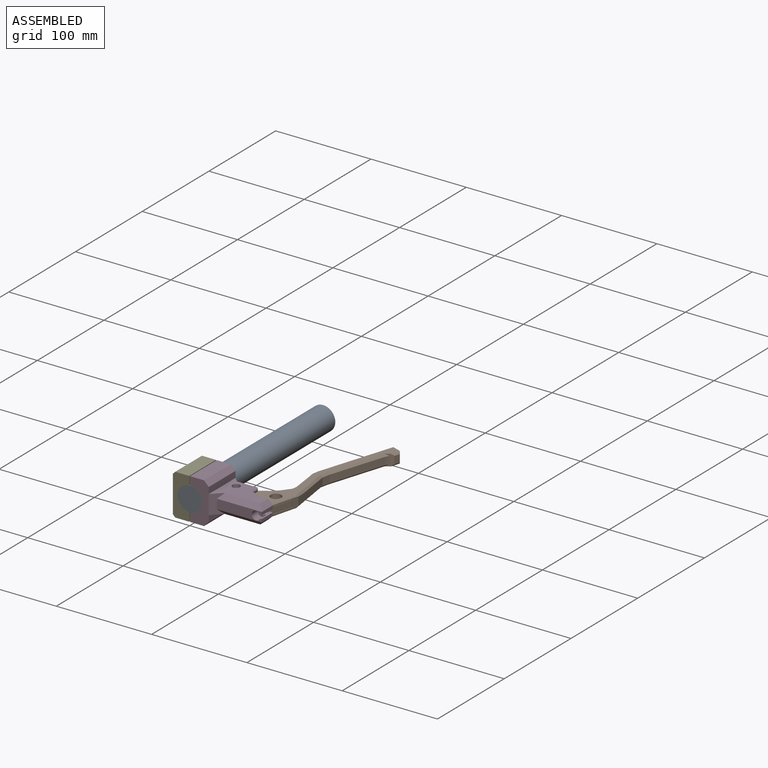
[diagram: assembled view]
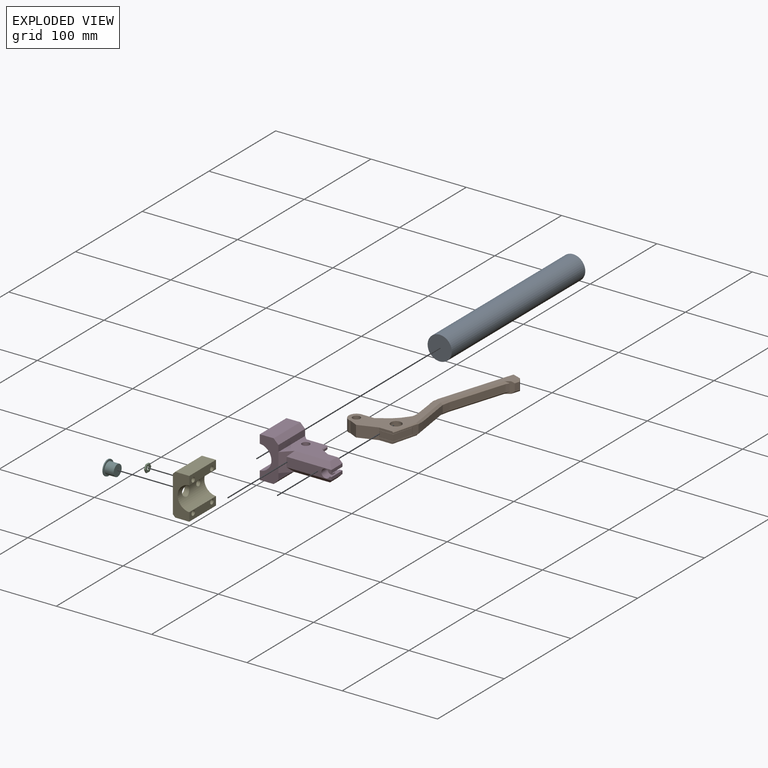
[diagram: exploded view]
GUIDED TOUR — MATED ASSEMBLY (Onshape document 7befc8989a784913a7638c34, AutoMate assembly 7befc8989a784913a7638c34_0e0c5ffce9ebd1dbfafa8be5_669b1a6eef38ef0215244f0b_default)

This assembly has 6 components, labeled P0..P5 below (a component is one placed occurrence of a part; the same part can appear more than once), held together by 9 mates. A mate is a constraint between two components; its type names the relative motion it leaves free:
  FASTENED — locks the two components together rigidly (no relative motion),
  PARALLEL — keeps the two listed directions parallel,
  PLANAR — leaves sliding in the plane through the listed point (normal = the listed direction) and rotation about that normal free,
  REVOLUTE — leaves rotation about the listed axis free (a hinge),
  SLIDER — leaves translation along the listed axis free.
Axis/direction vectors are unit vectors and 'through' points are millimeter coordinates, both in the assembly's world frame.

MATES
  1. PLANAR "Planar 1": P4 <-> P3, direction (0.000, -1.000, 0.000) through (-7.85, 0.00, 21.70) mm
  2. PARALLEL "Parallel 1": P4 <-> P3, direction (1.000, 0.000, 0.000) through (-0.50, 20.00, 17.38) mm
  3. PLANAR "Planar 2": P4 <-> P5, direction (-1.000, 0.000, 0.000) through (-17.70, 20.36, -0.01) mm
  4. REVOLUTE "Revolute 1": P1 <-> P3, axis (0.000, 0.000, -1.000) through (29.84, 27.00, -6.00) mm
  5. SLIDER "Slider 1": P0 <-> P3, axis (0.000, 1.000, 0.000) through (0.00, 100.00, 0.00) mm
  6. FASTENED "Fastened 2": P4 <-> P0, direction (0.000, -1.000, 0.000) through (0.00, 0.00, 0.00) mm
  7. SLIDER "Slider 3": P2 <-> P4, axis (1.000, 0.000, 0.000) through (-17.70, 31.00, 0.00) mm
  8. PARALLEL "Parallel 2": P3 <-> P1, direction (0.000, 1.000, 0.000) through (62.73, 21.66, 9.00) mm
  9. SLIDER "Slider 2": P4 <-> P5, axis (-1.000, 0.000, 0.000) through (-17.70, 12.00, 0.00) mm

ASSEMBLY ORDER
  1. P4 — the base component [order heuristic]
  2. P3 [order verified]
  3. P5 — core [order heuristic]
  4. P1 [order verified]
  5. P0 — core [order heuristic]
  6. P2 [order verified]
Order-tag legend:
  [order verified] — this step's position reverses a verified removal order: the component was checked to insert without passing through the ones already placed.
  [order heuristic] — the first 3 components form the assembly's core: parts whose collision-free extraction could not be verified, listed in mate-graph order.

Of the 6 components, 1 carries the full construction recipe — the FeatureScript program that regenerates the part's solid from scratch; the rest are supplied as boundary geometry only.
Each toured component is shown spotlighted twice — in the assembled view, then in the exploded view, where a leader line traces a displaced component back to its assembled socket (saturated green if recipe-attached, orange if geometry-only; every other component desaturated gray) — followed by its recipe or geometry summary and the mates that hold it.
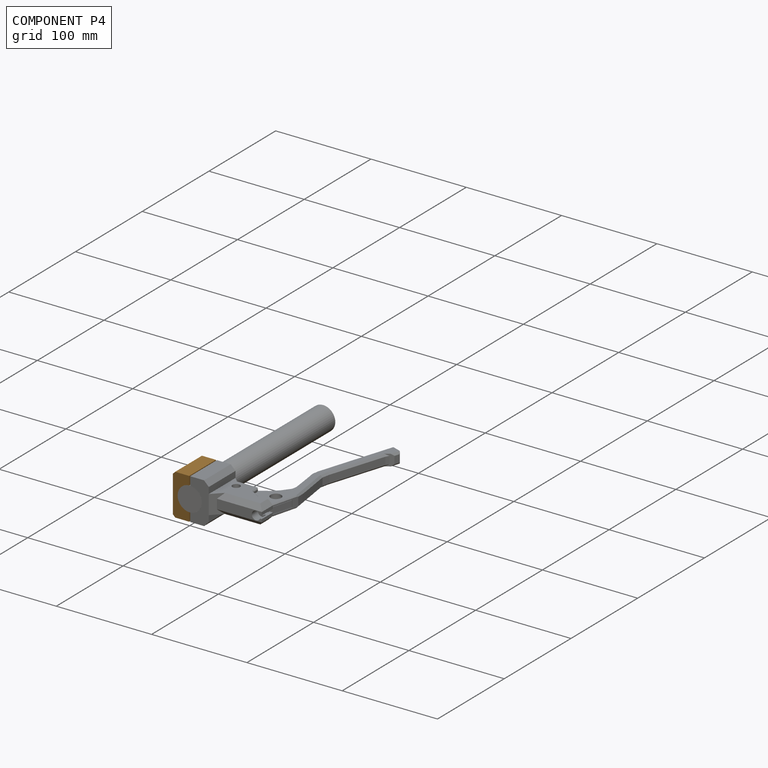
[diagram: component P4 — assembled]
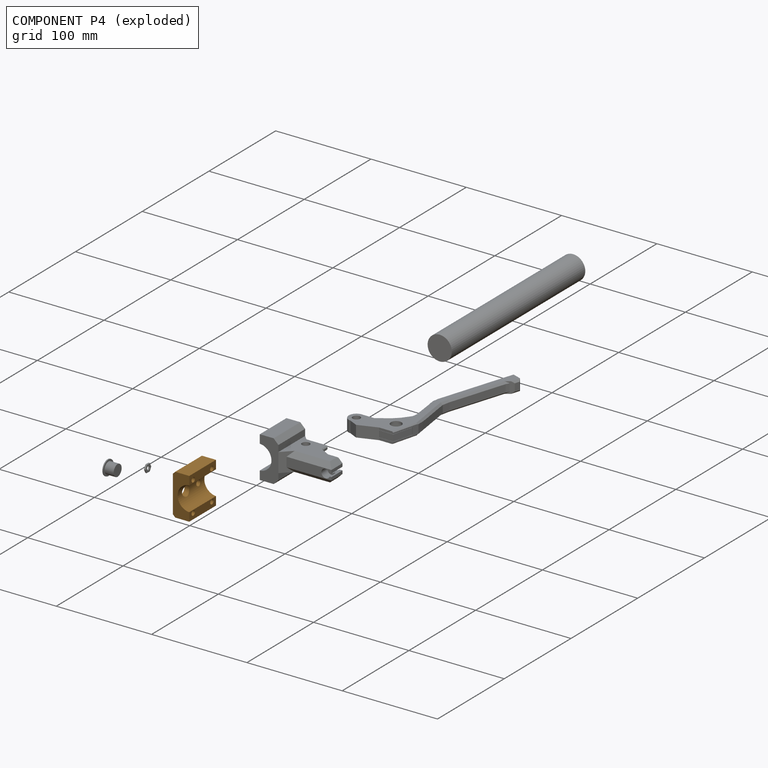
[diagram: component P4 — exploded]
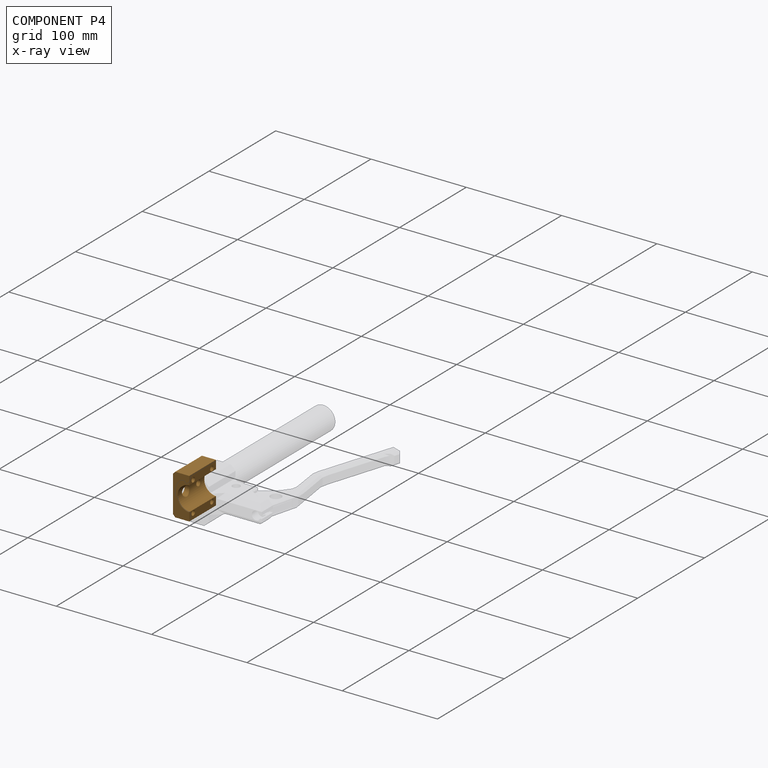
[diagram: component P4 — x-ray view]
COMPONENT P4 — geometry summary (no construction recipe available for this part):
  bounding box: 43.4 x 40.0 x 17.2 mm
  B-rep topology: 1 solid, 24 faces, 140 edges
  volume: 17131 mm^3 (57% of its bounding box)
  symmetry: mirror-symmetric across its z mid-plane
Held by: PLANAR mate "Planar 1" to P3; PARALLEL mate "Parallel 1" to P3; PLANAR mate "Planar 2" to P5; FASTENED mate "Fastened 2" to P0; SLIDER mate "Slider 3" to P2; SLIDER mate "Slider 2" to P5.
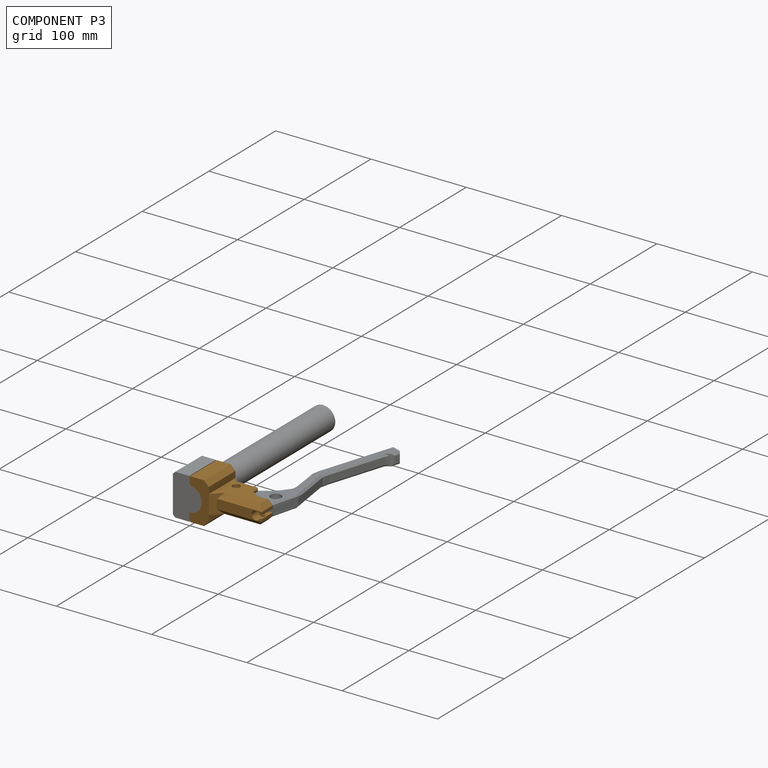
[diagram: component P3 — assembled]
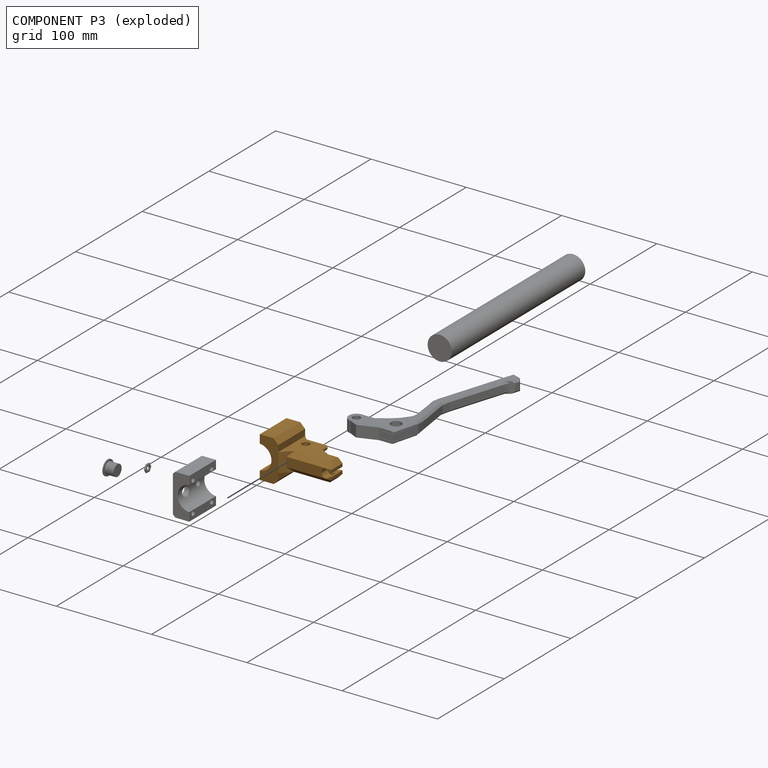
[diagram: component P3 — exploded]
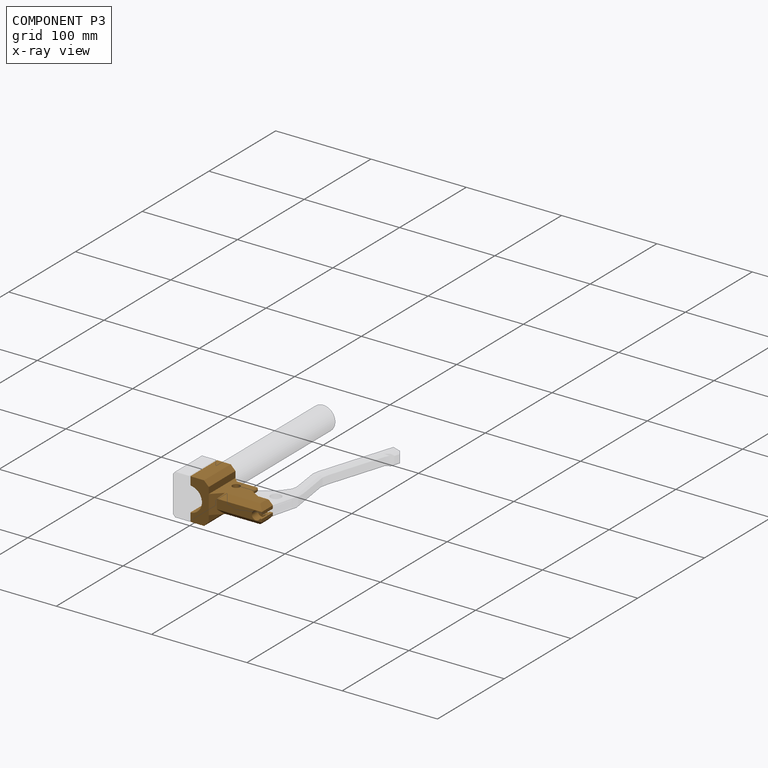
[diagram: component P3 — x-ray view]
COMPONENT P3 — geometry summary (no construction recipe available for this part):
  bounding box: 71.6 x 43.4 x 40.0 mm
  B-rep topology: 1 solid, 72 faces, 352 edges
  volume: 38977 mm^3 (31% of its bounding box)
  symmetry: mirror-symmetric across its z mid-plane
Held by: PLANAR mate "Planar 1" to P4; PARALLEL mate "Parallel 1" to P4; REVOLUTE mate "Revolute 1" to P1; SLIDER mate "Slider 1" to P0; PARALLEL mate "Parallel 2" to P1.
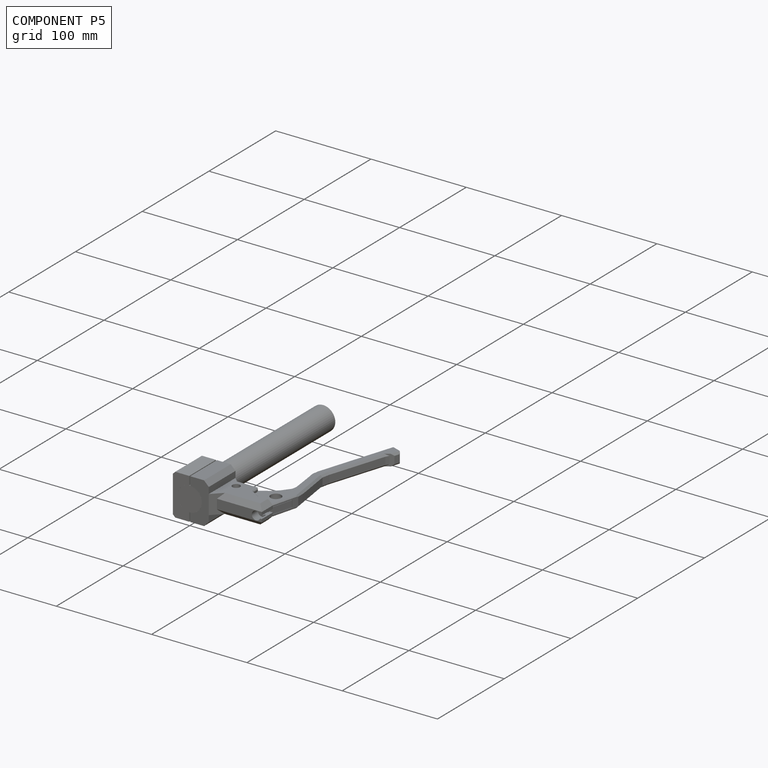
[diagram: component P5 — assembled]
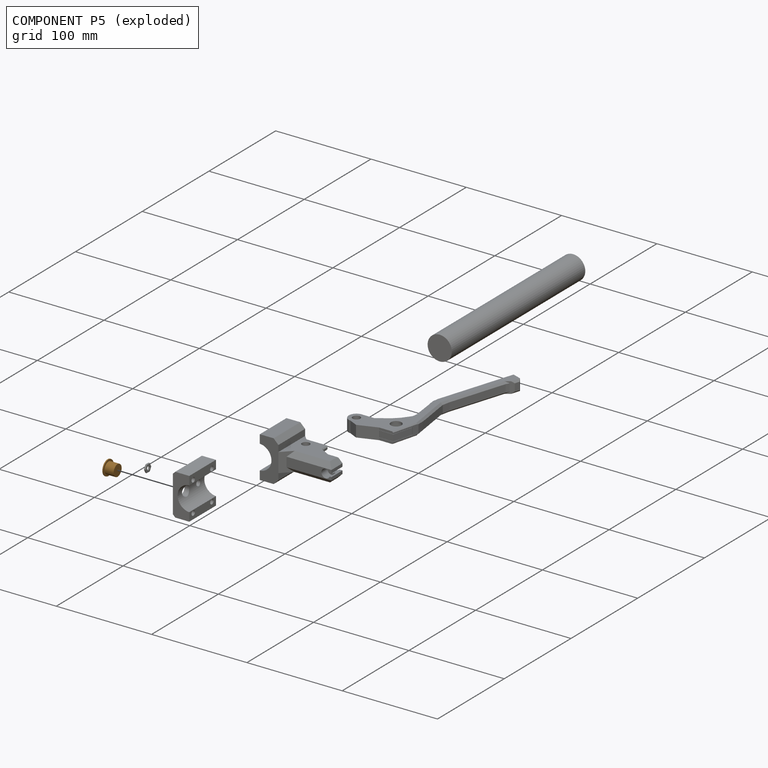
[diagram: component P5 — exploded]
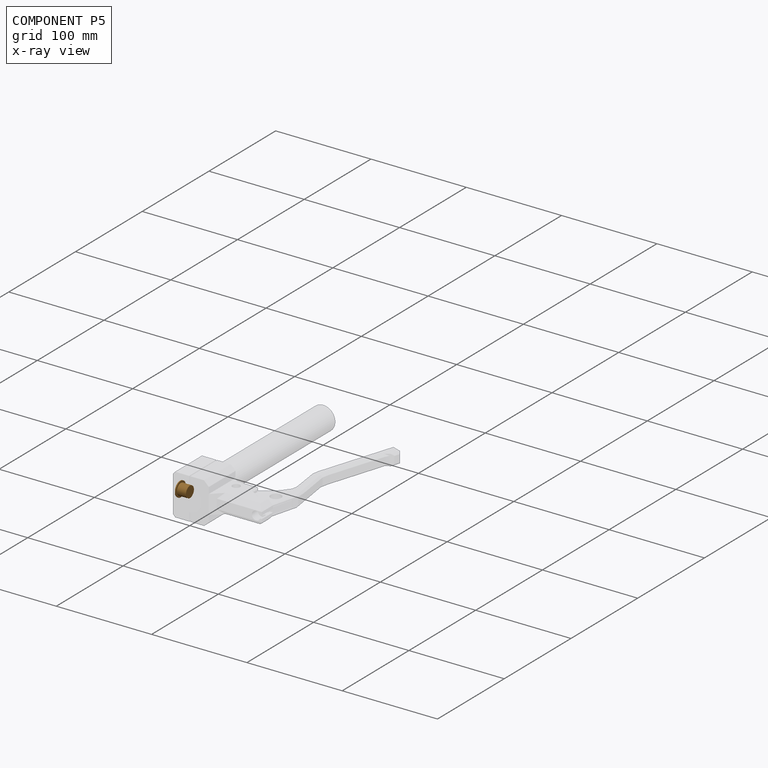
[diagram: component P5 — x-ray view]
COMPONENT P5 — geometry summary (no construction recipe available for this part):
  bounding box: 15.7 x 15.7 x 11.1 mm
  B-rep topology: 1 solid, 6 faces, 16 edges
  volume: 1331 mm^3 (49% of its bounding box)
  symmetry: revolution-symmetric about the z axis through its bounding-box center; mirror-symmetric across its x mid-plane, y mid-plane
Held by: PLANAR mate "Planar 2" to P4; SLIDER mate "Slider 2" to P4.
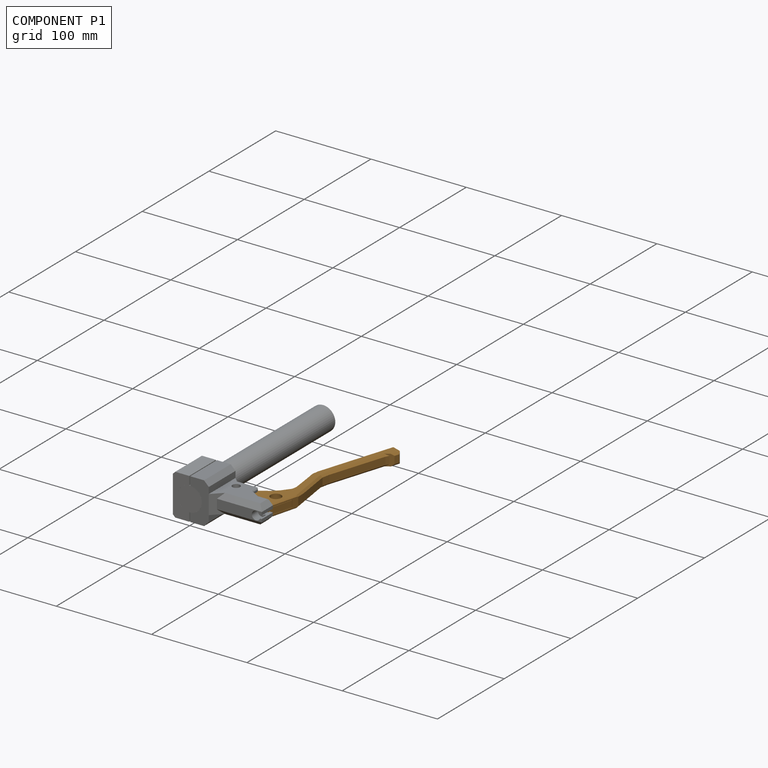
[diagram: component P1 — assembled]
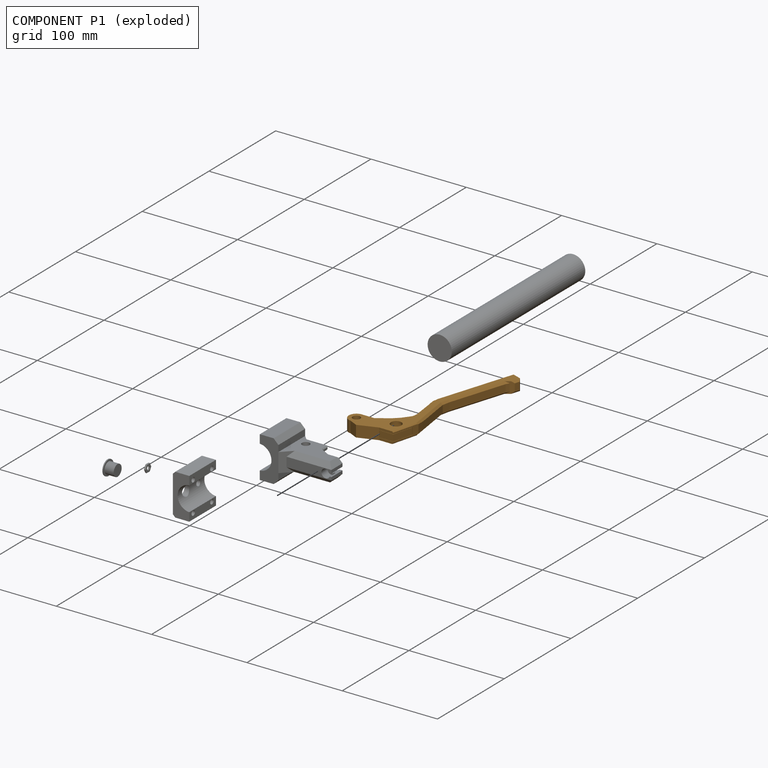
[diagram: component P1 — exploded]
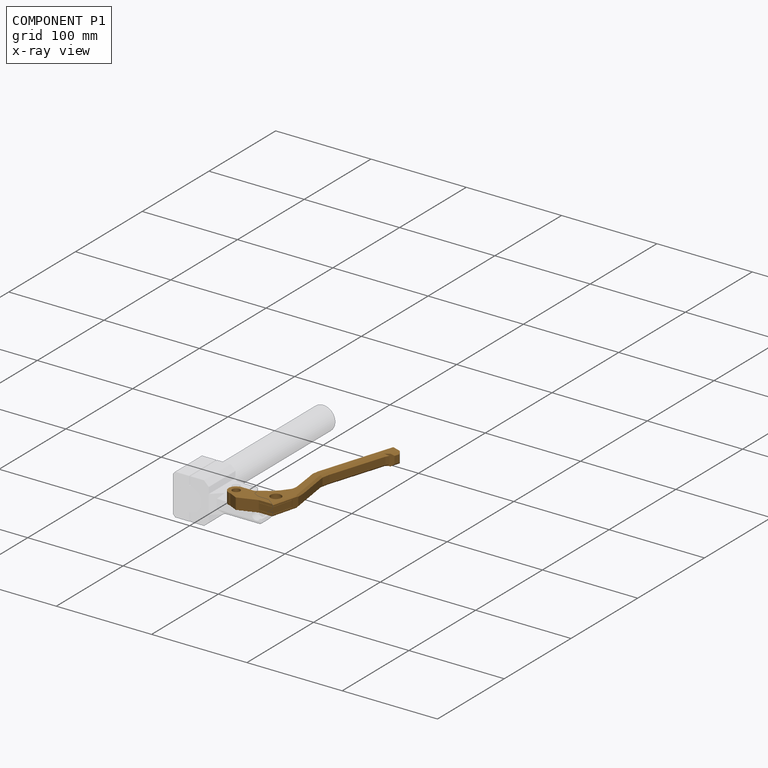
[diagram: component P1 — x-ray view]
COMPONENT P1 — geometry summary (no construction recipe available for this part):
  bounding box: 161.5 x 78.6 x 12.0 mm
  B-rep topology: 1 solid, 70 faces, 368 edges
  volume: 25670 mm^3 (17% of its bounding box)
  symmetry: mirror-symmetric across its z mid-plane
Held by: REVOLUTE mate "Revolute 1" to P3; PARALLEL mate "Parallel 2" to P3.
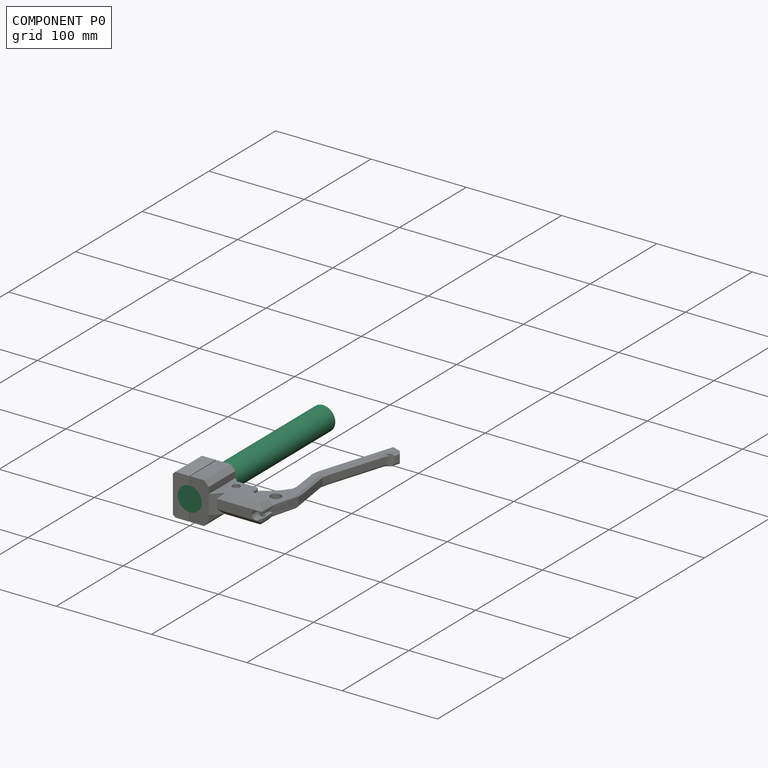
[diagram: component P0 — assembled]
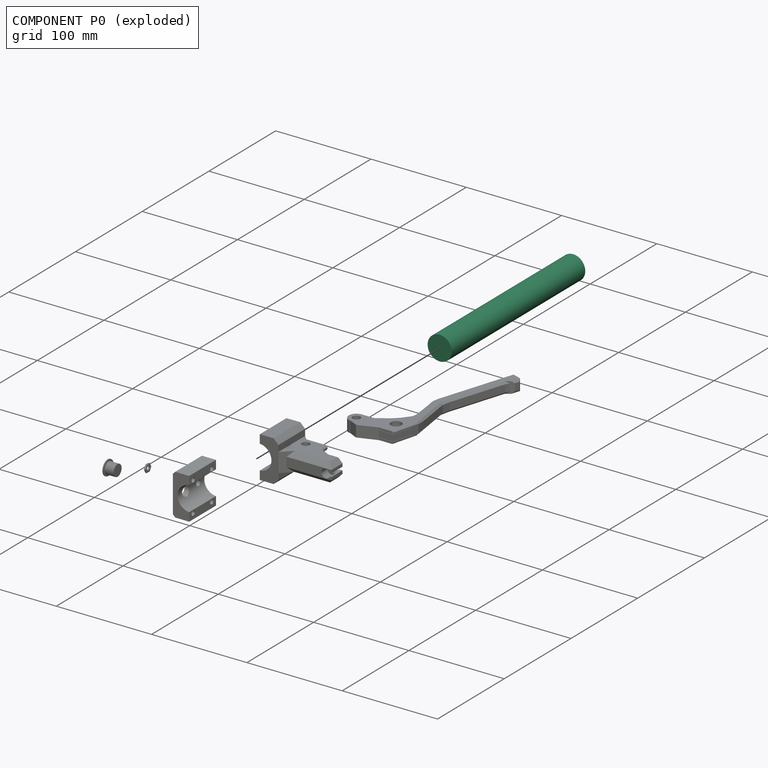
[diagram: component P0 — exploded]
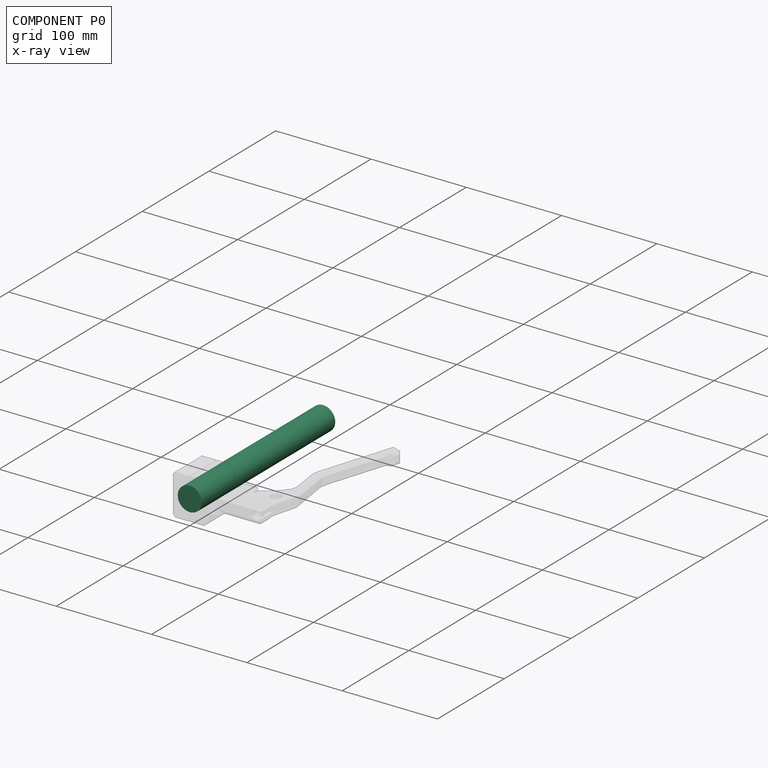
[diagram: component P0 — x-ray view]
COMPONENT P0 — recipe-attached (CADFS 00881236, mesh-verified: the recipe's output STEP matches this component's geometry to below the mesh-comparison resolution (tessellation chordal tolerance ~0.305 mm)).
Held by: SLIDER mate "Slider 1" to P3; FASTENED mate "Fastened 2" to P4.
Construction recipe (FeatureScript — the CAD program that rebuilds this solid; sketch coordinates are in the units given by the * unit suffixes, e.g. mm):

FeatureScript 1511;
import(path : "onshape/std/geometry.fs", version : "1511.0");
import(path : "onshape/std/common.fs", version : "1511.0");
const mm = millimeter;
const VERTEX = EntityType.VERTEX;
const EDGE = EntityType.EDGE;
const FACE = EntityType.FACE;
const BODY = EntityType.BODY;
function v(x, y){return vector(x, y);}
function OD(order){return orderDisambiguation(order);}
function OSD(set){return originalSetDisambiguation(set);}
function TD(topology){return topologyDisambiguation(topology);}
function TDD(query){return trueDependencyDisambiguation(query);}
function sQuery(a, b, c) {return sketchEntityQuery(a, b, c);}

annotation { "Feature Type Name" : "Feature", "Feature Type Description" : "" }
export const myFeature = defineFeature(function(context is Context, id is Id, definition is map)
    precondition{}
    {
        {
            var Q0;
            Q0=qCreatedBy(makeId("Right.planeOp"),FACE);
            var sketch = newSketch(context, id + "F0", { "sketchPlane" : qUnion([Q0])});
            skCircle(sketch, "E0", {"center": v(0, 0) * mm, "radius": 12.7 * mm});
            skSolve(sketch);
        }
        {
            var Q0;
            Q0=qSketchRegion(id+"F0",true);
            extrude(context, id + "F1", {"entities" : qUnion([Q0]), "depth" : 200 * mm, "offsetDistance" : 25 * mm});
        }
    });
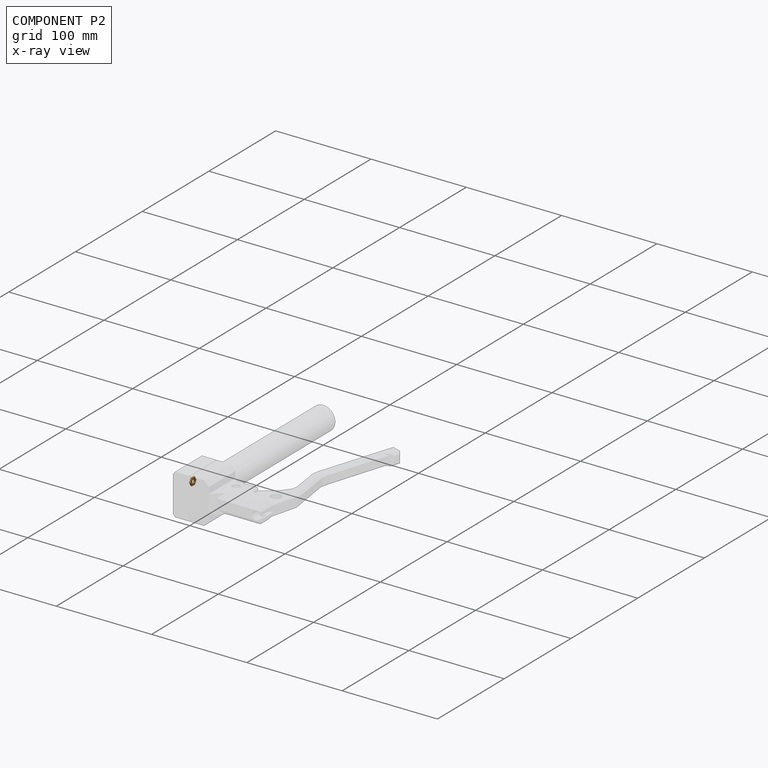
[diagram: component P2 — x-ray view]
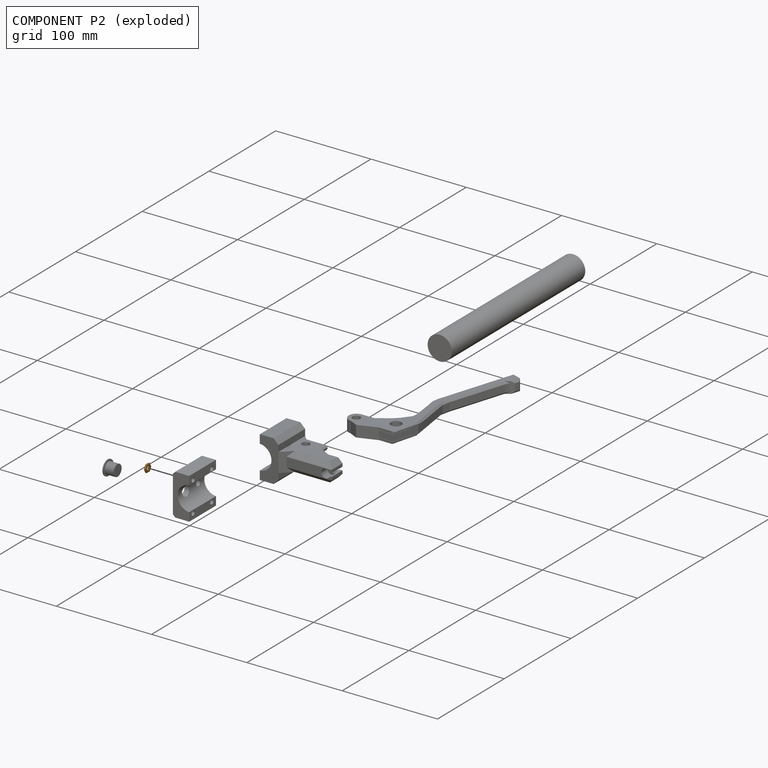
[diagram: component P2 — exploded]
COMPONENT P2 — geometry summary (no construction recipe available for this part):
  bounding box: 9.2 x 8.0 x 1.5 mm
  B-rep topology: 1 solid, 15 faces, 66 edges
  volume: 64 mm^3 (57% of its bounding box)
  symmetry: 6-fold rotationally symmetric about the y axis; mirror-symmetric across its x mid-plane, z mid-plane
Held by: SLIDER mate "Slider 3" to P4.
PROVENANCE & LICENSES
Assembly (occurrences, transforms, mates, per-part STEP geometry): AutoMate dataset, Zenodo record 7776208, CC0.
Construction recipes: CADFS (HuggingFace VladPyatov/CADFS, CC-BY-4.0, layered over the ABC dataset), FeatureScript reconstruction programs keyed by ABC model id.
Join: ABC meta listings map ABC model id -> Onshape documentId; within a shared document, parts are matched by geometric signature (bounding-box dims + volume at 0.1% relative tolerance, exact B-rep face/solid counts).
Verification: 1 of this assembly's 6 components carries a recipe attachment, and every attachment is mesh-verified: the CADFS STEP and the AutoMate member STEP were compared as meshes in their shared local frame (symmetric sampled-point-to-mesh distance); worst across the 1 attachment: below the mesh-comparison resolution (tessellation chordal tolerance ~0.305 mm) on a 203 mm part.
Renders: orthographic iso camera (az 35 / el 25); the floor grid conveys scale (grid pitch printed in each image; no ruler). In the exploded view each component is displaced by its stored offset vector: the offsets alone carry the explosion direction (mate normal/axis signs are not orientation cues and do not encode it), and separation distances are assigned per mate-chain, not proportionally to assembly-order depth.
